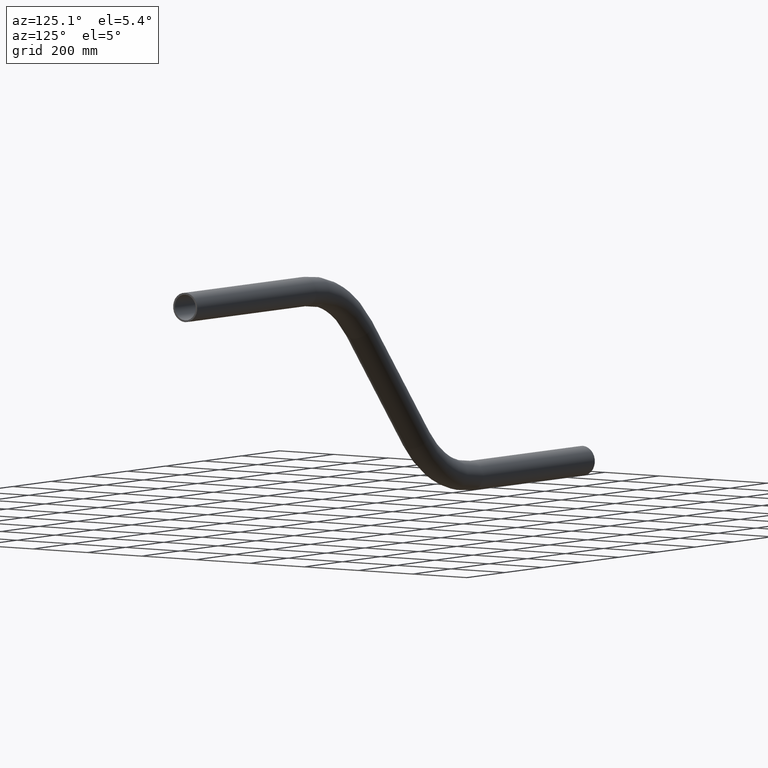
[diagram: clean part render]
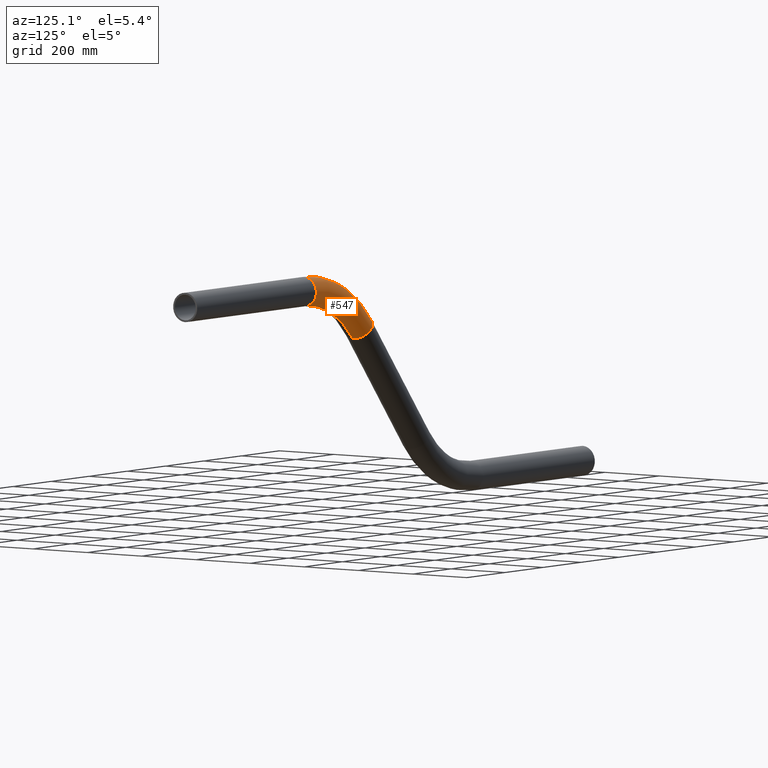
[diagram: same view with one face highlighted and labeled with its STEP entity id]
A machine part, auxiliary view. The second image highlights one B-rep face of the part: STEP entity #547.
In plain terms, the highlighted toroidal blend (fillet) surface has major radius 375 mm and minor (blend) radius 44.45 mm.
Its self-contained STEP definition (entity closure, byte-faithful):
#6 = DIRECTION ( 'NONE',  ( -0.000000000000000000, -1.000000000000000000, 0.000000000000000000 ) ) ;
#8 = CARTESIAN_POINT ( 'NONE',  ( 1207.687597308056411, 5.443555022209986486E-15, 462.4734443818851446 ) ) ;
#17 = DIRECTION ( 'NONE',  ( -0.000000000000000000, -1.000000000000000000, 0.000000000000000000 ) ) ;
#29 = VERTEX_POINT ( 'NONE', #8 ) ;
#65 = AXIS2_PLACEMENT_3D ( 'NONE', #393, #193, #497 ) ;
#73 = AXIS2_PLACEMENT_3D ( 'NONE', #432, #76, #238 ) ;
#76 = DIRECTION ( 'NONE',  ( -0.000000000000000000, -1.000000000000000000, 0.000000000000000000 ) ) ;
#79 = ORIENTED_EDGE ( 'NONE', *, *, #579, .T. ) ;
#95 = AXIS2_PLACEMENT_3D ( 'NONE', #183, #17, #580 ) ;
#109 = AXIS2_PLACEMENT_3D ( 'NONE', #359, #6, #200 ) ;
#115 = ORIENTED_EDGE ( 'NONE', *, *, #167, .T. ) ;
#126 = DIRECTION ( 'NONE',  ( 0.6427876096865378086, 0.000000000000000000, 0.7660444431189793457 ) ) ;
#130 = VERTEX_POINT ( 'NONE', #608 ) ;
#160 = FACE_OUTER_BOUND ( 'NONE', #590, .T. ) ;
#164 = CIRCLE ( 'NONE', #95, 330.5499999999997840 ) ;
#167 = EDGE_CURVE ( 'NONE', #29, #326, #209, .T. ) ;
#169 = ORIENTED_EDGE ( 'NONE', *, *, #653, .F. ) ;
#181 = CARTESIAN_POINT ( 'NONE',  ( 1139.586246314779146, 0.000000000000000000, 519.6172628830182703 ) ) ;
#183 = CARTESIAN_POINT ( 'NONE',  ( 1460.903587981035116, 5.443555022209986486E-15, 250.0000000000000000 ) ) ;
#193 = DIRECTION ( 'NONE',  ( 1.000000000000000000, 0.000000000000000000, 1.165734175856414367E-15 ) ) ;
#200 = DIRECTION ( 'NONE',  ( 0.000000000000000000, 0.000000000000000000, -1.000000000000000000 ) ) ;
#209 = CIRCLE ( 'NONE', #584, 44.44999999999994600 ) ;
#238 = DIRECTION ( 'NONE',  ( 0.000000000000000000, 0.000000000000000000, -1.000000000000000000 ) ) ;
#242 = CIRCLE ( 'NONE', #65, 44.44999999999998863 ) ;
#326 = VERTEX_POINT ( 'NONE', #181 ) ;
#346 = EDGE_CURVE ( 'NONE', #530, #130, #242, .T. ) ;
#354 = CARTESIAN_POINT ( 'NONE',  ( 1460.903587981034661, 5.443555022210016463E-15, 580.5499999999998408 ) ) ;
#359 = CARTESIAN_POINT ( 'NONE',  ( 1460.903587981035116, 0.000000000000000000, 250.0000000000000000 ) ) ;
#369 = CIRCLE ( 'NONE', #73, 419.4499999999997613 ) ;
#375 = ORIENTED_EDGE ( 'NONE', *, *, #346, .F. ) ;
#393 = CARTESIAN_POINT ( 'NONE',  ( 1460.903587981034661, 0.000000000000000000, 624.9999999999997726 ) ) ;
#432 = CARTESIAN_POINT ( 'NONE',  ( 1460.903587981035116, 0.000000000000000000, 250.0000000000000000 ) ) ;
#470 = CARTESIAN_POINT ( 'NONE',  ( 1173.636921811417778, 0.000000000000000000, 491.0453536324517927 ) ) ;
#478 = DIRECTION ( 'NONE',  ( 0.7660444431189782355, 0.000000000000000000, -0.6427876096865391409 ) ) ;
#497 = DIRECTION ( 'NONE',  ( 0.000000000000000000, 0.000000000000000000, -1.000000000000000000 ) ) ;
#500 = TOROIDAL_SURFACE ( 'NONE', #109, 374.9999999999997726, 44.45000000000000995 ) ;
#530 = VERTEX_POINT ( 'NONE', #354 ) ;
#547 = ADVANCED_FACE ( 'NONE', ( #160 ), #500, .T. ) ;
#579 = EDGE_CURVE ( 'NONE', #530, #29, #164, .T. ) ;
#580 = DIRECTION ( 'NONE',  ( 0.000000000000000000, 0.000000000000000000, -1.000000000000000000 ) ) ;
#584 = AXIS2_PLACEMENT_3D ( 'NONE', #470, #126, #478 ) ;
#590 = EDGE_LOOP ( 'NONE', ( #169, #375, #79, #115 ) ) ;
#608 = CARTESIAN_POINT ( 'NONE',  ( 1460.903587981034661, 0.000000000000000000, 669.4499999999998181 ) ) ;
#653 = EDGE_CURVE ( 'NONE', #130, #326, #369, .T. ) ;